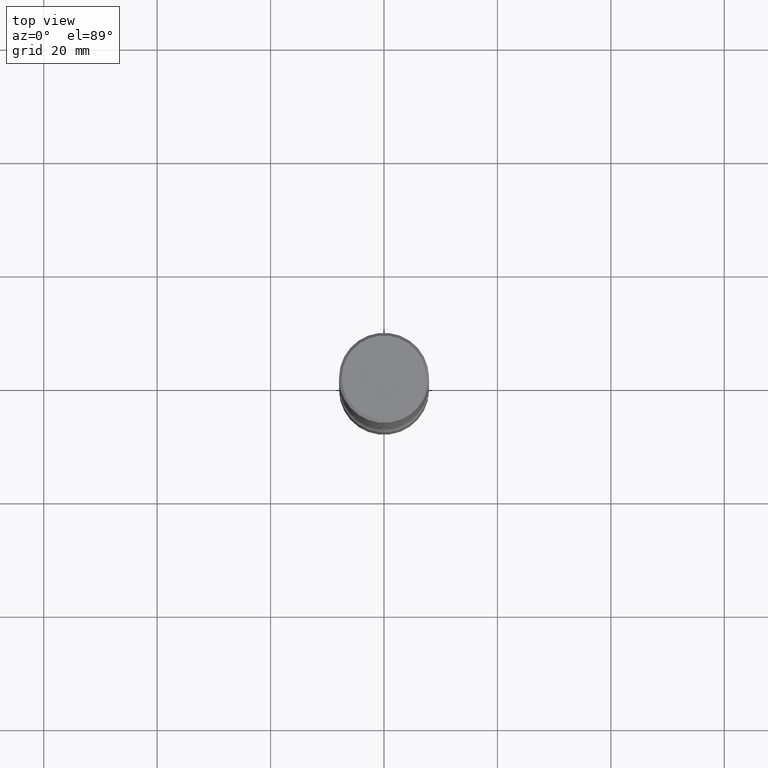
[diagram: clean part render]
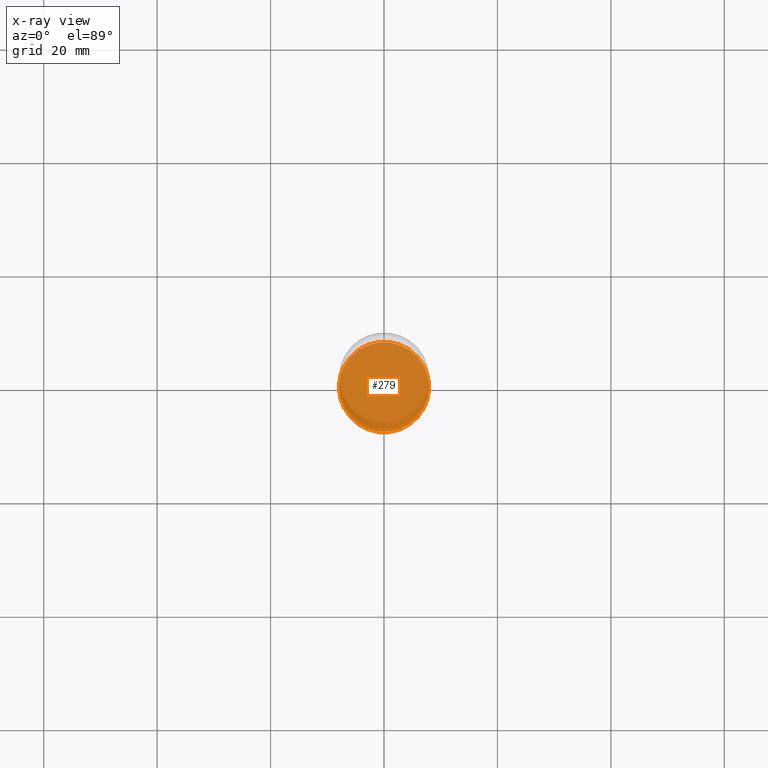
[diagram: x-ray — body ghosted, one internal face saturated and labeled with its STEP entity id]
A machine part, top view, then the same camera in x-ray: the body is ghosted and one INTERNAL B-rep face — a face not visible from any outside direction — is saturated and labeled: STEP entity #279.
In plain terms, the highlighted planar face has unit normal (0, -0, -1).
Its self-contained STEP definition (entity closure, byte-faithful):
#13 = DIRECTION ( 'NONE',  ( -2.445468806185136597E-29, 3.491481338843145583E-15, 1.000000000000000000 ) ) ;
#23 = DIRECTION ( 'NONE',  ( 2.438088387897960049E-29, -3.491481338843145188E-15, -1.000000000000000000 ) ) ;
#42 = VERTEX_POINT ( 'NONE', #484 ) ;
#54 = DIRECTION ( 'NONE',  ( 1.000000000000000000, -6.982962677686265133E-15, 0.000000000000000000 ) ) ;
#62 = EDGE_CURVE ( 'NONE', #42, #259, #404, .T. ) ;
#96 = DIRECTION ( 'NONE',  ( -2.445468806185136597E-29, 3.491481338843145583E-15, 1.000000000000000000 ) ) ;
#225 = ORIENTED_EDGE ( 'NONE', *, *, #253, .T. ) ;
#228 = DIRECTION ( 'NONE',  ( 1.000000000000000000, -6.982962677686265133E-15, 0.000000000000000000 ) ) ;
#231 = CARTESIAN_POINT ( 'NONE',  ( 9.170508023194261117E-29, -1.309305502066179584E-14, -3.749999999999999556 ) ) ;
#253 = EDGE_CURVE ( 'NONE', #259, #42, #280, .T. ) ;
#259 = VERTEX_POINT ( 'NONE', #268 ) ;
#268 = CARTESIAN_POINT ( 'NONE',  ( -0.3125000000000001665, -1.272309408099834754E-14, -3.749999999999999556 ) ) ;
#279 = ADVANCED_FACE ( 'NONE', ( #379 ), #548, .F. ) ;
#280 = CIRCLE ( 'NONE', #494, 0.3125000000000001665 ) ;
#327 = ORIENTED_EDGE ( 'NONE', *, *, #62, .T. ) ;
#352 = CARTESIAN_POINT ( 'NONE',  ( 9.170508023194261117E-29, -1.309305502066179584E-14, -3.749999999999999556 ) ) ;
#379 = FACE_OUTER_BOUND ( 'NONE', #466, .T. ) ;
#382 = DIRECTION ( 'NONE',  ( -1.000000000000000000, 6.982962677686265922E-15, -4.876176775795935793E-29 ) ) ;
#404 = CIRCLE ( 'NONE', #425, 0.3125000000000001665 ) ;
#425 = AXIS2_PLACEMENT_3D ( 'NONE', #231, #13, #228 ) ;
#457 = CARTESIAN_POINT ( 'NONE',  ( 9.170508023194261117E-29, -1.309305502066179584E-14, -3.749999999999999556 ) ) ;
#466 = EDGE_LOOP ( 'NONE', ( #327, #225 ) ) ;
#484 = CARTESIAN_POINT ( 'NONE',  ( 0.3125000000000001665, -1.527523085743875418E-14, -3.749999999999999556 ) ) ;
#494 = AXIS2_PLACEMENT_3D ( 'NONE', #352, #96, #54 ) ;
#546 = AXIS2_PLACEMENT_3D ( 'NONE', #457, #23, #382 ) ;
#548 = PLANE ( 'NONE',  #546 ) ;